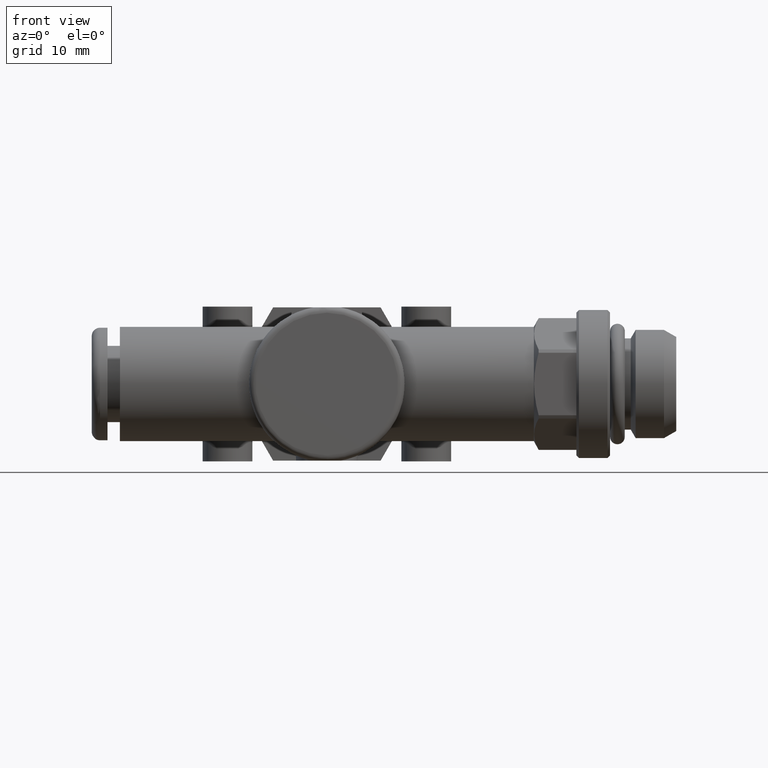
[diagram: clean part render]
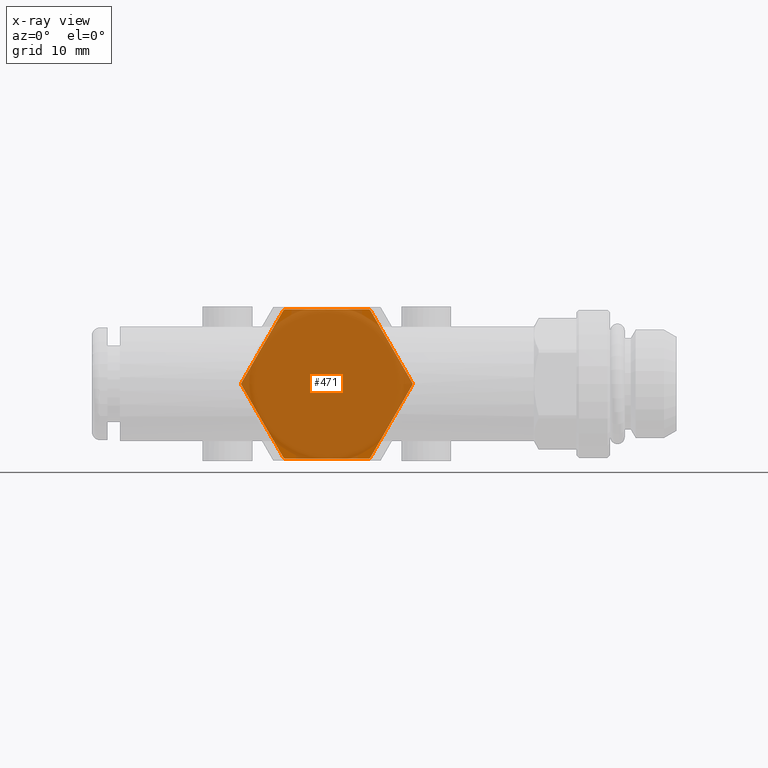
[diagram: x-ray — body ghosted, one internal face saturated and labeled with its STEP entity id]
A machine part, front view, then the same camera in x-ray: the body is ghosted and one INTERNAL B-rep face — a face not visible from any outside direction — is saturated and labeled: STEP entity #471.
In plain terms, the highlighted planar face has unit normal (0, 1, 0).
Its self-contained STEP definition (entity closure, byte-faithful):
#471 = ADVANCED_FACE( '', ( #1013 ), #1014, .F. );
#1013 = FACE_OUTER_BOUND( '', #1684, .T. );
#1014 = PLANE( '', #1685 );
#1684 = EDGE_LOOP( '', ( #2684, #2685, #2686, #2687, #2688, #2689, #2690, #2691, #2692, #2693, #2694, #2695 ) );
#1685 = AXIS2_PLACEMENT_3D( '', #2696, #2697, #2698 );
#2684 = ORIENTED_EDGE( '', *, *, #3622, .F. );
#2685 = ORIENTED_EDGE( '', *, *, #3548, .F. );
#2686 = ORIENTED_EDGE( '', *, *, #3868, .F. );
#2687 = ORIENTED_EDGE( '', *, *, #3869, .F. );
#2688 = ORIENTED_EDGE( '', *, *, #3774, .F. );
#2689 = ORIENTED_EDGE( '', *, *, #3732, .F. );
#2690 = ORIENTED_EDGE( '', *, *, #3662, .F. );
#2691 = ORIENTED_EDGE( '', *, *, #3830, .F. );
#2692 = ORIENTED_EDGE( '', *, *, #3870, .F. );
#2693 = ORIENTED_EDGE( '', *, *, #3871, .F. );
#2694 = ORIENTED_EDGE( '', *, *, #3872, .F. );
#2695 = ORIENTED_EDGE( '', *, *, #3823, .F. );
#2696 = CARTESIAN_POINT( '', ( 0.000000000000000, 0.000000000000000, 0.000000000000000 ) );
#2697 = DIRECTION( '', ( 1.00000000000000, 0.000000000000000, -0.000000000000000 ) );
#2698 = DIRECTION( '', ( -0.000000000000000, 0.000000000000000, -1.00000000000000 ) );
#3548 = EDGE_CURVE( '', #4105, #4106, #4107, .T. );
#3622 = EDGE_CURVE( '', #4106, #4235, #4236, .T. );
#3662 = EDGE_CURVE( '', #4303, #4304, #4305, .T. );
#3732 = EDGE_CURVE( '', #4304, #4421, #4422, .T. );
#3774 = EDGE_CURVE( '', #4421, #4488, #4489, .T. );
#3823 = EDGE_CURVE( '', #4235, #4561, #4562, .T. );
#3830 = EDGE_CURVE( '', #4571, #4303, #4572, .T. );
#3868 = EDGE_CURVE( '', #4628, #4105, #4629, .T. );
#3869 = EDGE_CURVE( '', #4488, #4628, #4630, .T. );
#3870 = EDGE_CURVE( '', #4631, #4571, #4632, .T. );
#3871 = EDGE_CURVE( '', #4633, #4631, #4634, .T. );
#3872 = EDGE_CURVE( '', #4561, #4633, #4635, .T. );
#4105 = VERTEX_POINT( '', #4935 );
#4106 = VERTEX_POINT( '', #4936 );
#4107 = LINE( '', #4937, #4938 );
#4235 = VERTEX_POINT( '', #5102 );
#4236 = CIRCLE( '', #5103, 10.3500000000000 );
#4303 = VERTEX_POINT( '', #5189 );
#4304 = VERTEX_POINT( '', #5190 );
#4305 = CIRCLE( '', #5191, 10.3500000000000 );
#4421 = VERTEX_POINT( '', #5349 );
#4422 = LINE( '', #5350, #5351 );
#4488 = VERTEX_POINT( '', #5428 );
#4489 = CIRCLE( '', #5429, 10.3500000000000 );
#4561 = VERTEX_POINT( '', #5576 );
#4562 = LINE( '', #5577, #5578 );
#4571 = VERTEX_POINT( '', #5589 );
#4572 = LINE( '', #5590, #5591 );
#4628 = VERTEX_POINT( '', #5700 );
#4629 = CIRCLE( '', #5701, 10.3500000000000 );
#4630 = LINE( '', #5702, #5703 );
#4631 = VERTEX_POINT( '', #5704 );
#4632 = CIRCLE( '', #5705, 10.3500000000000 );
#4633 = VERTEX_POINT( '', #5706 );
#4634 = LINE( '', #5707, #5708 );
#4635 = CIRCLE( '', #5709, 10.3500000000000 );
#4935 = CARTESIAN_POINT( '', ( 0.000000000000000, 5.23871987844982, -8.92627100390385 ) );
#4936 = CARTESIAN_POINT( '', ( 0.000000000000000, 10.3497373896701, -0.0737289960961477 ) );
#4937 = CARTESIAN_POINT( '', ( 0.000000000000000, 5.19615242270663, -9.00000000000000 ) );
#4938 = VECTOR( '', #6639, 1000.00000000000 );
#5102 = CARTESIAN_POINT( '', ( 0.000000000000000, 10.3497373896701, 0.0737289960961477 ) );
#5103 = AXIS2_PLACEMENT_3D( '', #6741, #6742, #6743 );
#5189 = CARTESIAN_POINT( '', ( 0.000000000000000, -10.3497373896701, 0.0737289960961477 ) );
#5190 = CARTESIAN_POINT( '', ( 0.000000000000000, -10.3497373896701, -0.0737289960961477 ) );
#5191 = AXIS2_PLACEMENT_3D( '', #6801, #6802, #6803 );
#5349 = CARTESIAN_POINT( '', ( 0.000000000000000, -5.23871987844982, -8.92627100390385 ) );
#5350 = CARTESIAN_POINT( '', ( 0.000000000000000, -10.3923048454133, 0.000000000000000 ) );
#5351 = VECTOR( '', #6900, 1000.00000000000 );
#5428 = CARTESIAN_POINT( '', ( 0.000000000000000, -5.11101751122025, -9.00000000000000 ) );
#5429 = AXIS2_PLACEMENT_3D( '', #6963, #6964, #6965 );
#5576 = CARTESIAN_POINT( '', ( 0.000000000000000, 5.23871987844982, 8.92627100390385 ) );
#5577 = CARTESIAN_POINT( '', ( 0.000000000000000, 10.3923048454133, 0.000000000000000 ) );
#5578 = VECTOR( '', #7018, 1000.00000000000 );
#5589 = CARTESIAN_POINT( '', ( 0.000000000000000, -5.23871987844982, 8.92627100390385 ) );
#5590 = CARTESIAN_POINT( '', ( 0.000000000000000, -5.19615242270663, 9.00000000000000 ) );
#5591 = VECTOR( '', #7027, 1000.00000000000 );
#5700 = CARTESIAN_POINT( '', ( 0.000000000000000, 5.11101751122025, -9.00000000000000 ) );
#5701 = AXIS2_PLACEMENT_3D( '', #7069, #7070, #7071 );
#5702 = CARTESIAN_POINT( '', ( 0.000000000000000, -5.19615242270663, -9.00000000000000 ) );
#5703 = VECTOR( '', #7072, 1000.00000000000 );
#5704 = CARTESIAN_POINT( '', ( 0.000000000000000, -5.11101751122025, 9.00000000000000 ) );
#5705 = AXIS2_PLACEMENT_3D( '', #7073, #7074, #7075 );
#5706 = CARTESIAN_POINT( '', ( 0.000000000000000, 5.11101751122025, 9.00000000000000 ) );
#5707 = CARTESIAN_POINT( '', ( 0.000000000000000, 5.19615242270663, 9.00000000000000 ) );
#5708 = VECTOR( '', #7076, 1000.00000000000 );
#5709 = AXIS2_PLACEMENT_3D( '', #7077, #7078, #7079 );
#6639 = DIRECTION( '', ( 0.000000000000000, 0.500000000000000, 0.866025403784439 ) );
#6741 = CARTESIAN_POINT( '', ( 0.000000000000000, 0.000000000000000, 0.000000000000000 ) );
#6742 = DIRECTION( '', ( 1.00000000000000, 0.000000000000000, -0.000000000000000 ) );
#6743 = DIRECTION( '', ( -0.000000000000000, 0.000000000000000, -1.00000000000000 ) );
#6801 = CARTESIAN_POINT( '', ( 0.000000000000000, 0.000000000000000, 0.000000000000000 ) );
#6802 = DIRECTION( '', ( 1.00000000000000, 0.000000000000000, -0.000000000000000 ) );
#6803 = DIRECTION( '', ( -0.000000000000000, 0.000000000000000, -1.00000000000000 ) );
#6900 = DIRECTION( '', ( 0.000000000000000, 0.500000000000000, -0.866025403784439 ) );
#6963 = CARTESIAN_POINT( '', ( 0.000000000000000, 0.000000000000000, 0.000000000000000 ) );
#6964 = DIRECTION( '', ( 1.00000000000000, 0.000000000000000, -0.000000000000000 ) );
#6965 = DIRECTION( '', ( -0.000000000000000, 0.000000000000000, -1.00000000000000 ) );
#7018 = DIRECTION( '', ( 0.000000000000000, -0.500000000000000, 0.866025403784439 ) );
#7027 = DIRECTION( '', ( 0.000000000000000, -0.500000000000000, -0.866025403784439 ) );
#7069 = CARTESIAN_POINT( '', ( 0.000000000000000, 0.000000000000000, 0.000000000000000 ) );
#7070 = DIRECTION( '', ( 1.00000000000000, 0.000000000000000, -0.000000000000000 ) );
#7071 = DIRECTION( '', ( -0.000000000000000, 0.000000000000000, -1.00000000000000 ) );
#7072 = DIRECTION( '', ( 0.000000000000000, 1.00000000000000, 0.000000000000000 ) );
#7073 = CARTESIAN_POINT( '', ( 0.000000000000000, 0.000000000000000, 0.000000000000000 ) );
#7074 = DIRECTION( '', ( 1.00000000000000, 0.000000000000000, -0.000000000000000 ) );
#7075 = DIRECTION( '', ( -0.000000000000000, 0.000000000000000, -1.00000000000000 ) );
#7076 = DIRECTION( '', ( 0.000000000000000, -1.00000000000000, 0.000000000000000 ) );
#7077 = CARTESIAN_POINT( '', ( 0.000000000000000, 0.000000000000000, 0.000000000000000 ) );
#7078 = DIRECTION( '', ( 1.00000000000000, 0.000000000000000, -0.000000000000000 ) );
#7079 = DIRECTION( '', ( -0.000000000000000, 0.000000000000000, -1.00000000000000 ) );